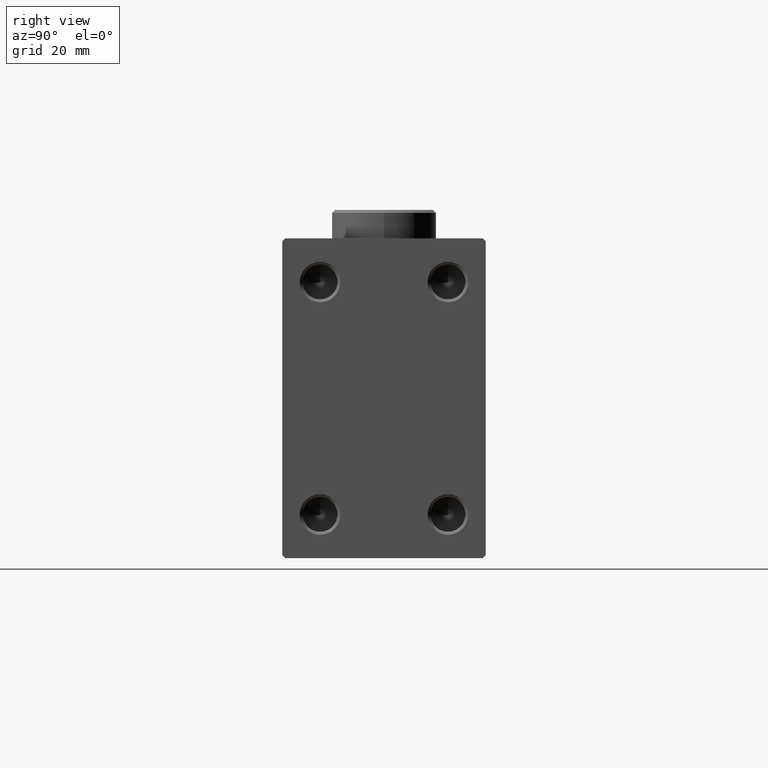
[diagram: clean part render]
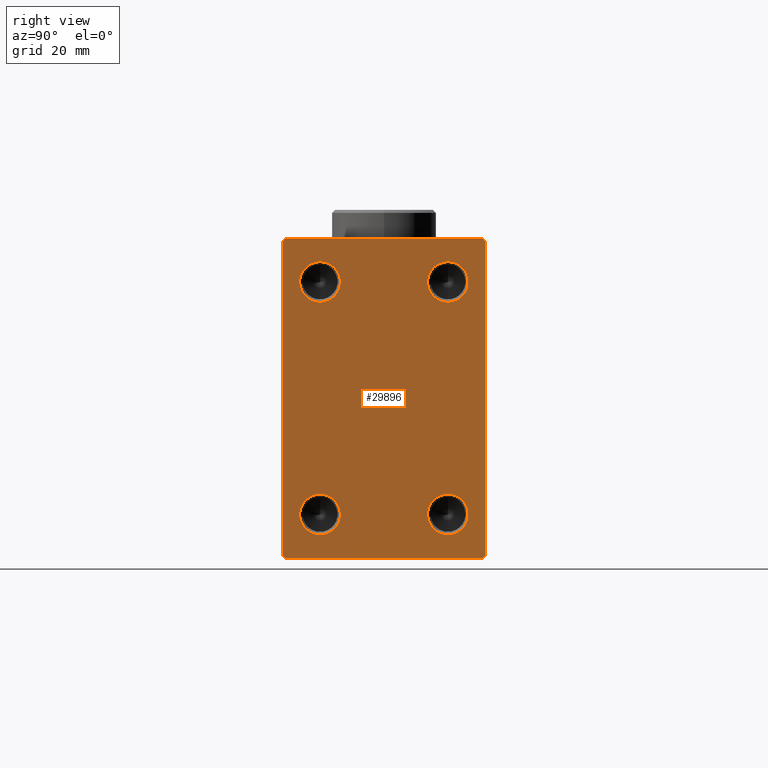
[diagram: same view with one face highlighted and labeled with its STEP entity id]
A machine part, right view. The second image highlights one B-rep face of the part: STEP entity #29896.
In plain terms, the highlighted planar face has unit normal (1, 0, 0).
Its self-contained STEP definition (entity closure, byte-faithful):
#2301 = LINE ( 'NONE', #17032, #26851 ) ;
#2559 = CARTESIAN_POINT ( 'NONE',  ( 96.00000000000000000, 17.50000000000000000, 27.00000000000001066 ) ) ;
#2663 = CARTESIAN_POINT ( 'NONE',  ( 96.00000000000000000, -11.00000000000000533, -20.00000000000000000 ) ) ;
#2890 = CARTESIAN_POINT ( 'NONE',  ( 96.00000000000000000, 11.00000000000000178, 16.50000000000001421 ) ) ;
#2904 = CARTESIAN_POINT ( 'NONE',  ( 96.00000000000000000, -11.00000000000000533, 23.50000000000000000 ) ) ;
#2905 = CARTESIAN_POINT ( 'NONE',  ( 96.00000000000000000, 0.000000000000000000, 0.000000000000000000 ) ) ;
#2946 = CARTESIAN_POINT ( 'NONE',  ( 96.00000000000000000, 11.00000000000000178, -23.49999999999999289 ) ) ;
#3115 = AXIS2_PLACEMENT_3D ( 'NONE', #22034, #44109, #19023 ) ;
#3133 = FACE_OUTER_BOUND ( 'NONE', #30936, .T. ) ;
#3319 = DIRECTION ( 'NONE',  ( 0.000000000000000000, 0.000000000000000000, -1.000000000000000000 ) ) ;
#3868 = CARTESIAN_POINT ( 'NONE',  ( 96.00000000000000000, -17.00000000000000711, -27.50000000000000711 ) ) ;
#3911 = ORIENTED_EDGE ( 'NONE', *, *, #40243, .F. ) ;
#4001 = EDGE_CURVE ( 'NONE', #26411, #32116, #37673, .T. ) ;
#4036 = AXIS2_PLACEMENT_3D ( 'NONE', #11429, #22036, #36056 ) ;
#6059 = CARTESIAN_POINT ( 'NONE',  ( 96.00000000000000000, 16.99999999999997868, -27.50000000000001066 ) ) ;
#6165 = ORIENTED_EDGE ( 'NONE', *, *, #6898, .T. ) ;
#6649 = DIRECTION ( 'NONE',  ( 0.000000000000000000, 1.000000000000000000, -9.912705577010325549E-17 ) ) ;
#6655 = DIRECTION ( 'NONE',  ( -0.000000000000000000, -0.7071067811865500152, 0.7071067811865451302 ) ) ;
#6898 = EDGE_CURVE ( 'NONE', #39638, #31574, #13319, .T. ) ;
#8013 = AXIS2_PLACEMENT_3D ( 'NONE', #2663, #27764, #44794 ) ;
#8434 = VERTEX_POINT ( 'NONE', #24099 ) ;
#8831 = EDGE_CURVE ( 'NONE', #36278, #36574, #29937, .T. ) ;
#9263 = ORIENTED_EDGE ( 'NONE', *, *, #17759, .F. ) ;
#9439 = DIRECTION ( 'NONE',  ( 0.000000000000000000, -1.261617073437677752E-16, 1.000000000000000000 ) ) ;
#9797 = FACE_BOUND ( 'NONE', #17422, .T. ) ;
#9871 = CARTESIAN_POINT ( 'NONE',  ( 96.00000000000000000, 22.24999999999994316, 22.25000000000009592 ) ) ;
#9989 = VERTEX_POINT ( 'NONE', #42189 ) ;
#10179 = EDGE_CURVE ( 'NONE', #31574, #33189, #44452, .T. ) ;
#10218 = EDGE_CURVE ( 'NONE', #33189, #29326, #23281, .T. ) ;
#10745 = EDGE_CURVE ( 'NONE', #16069, #13189, #37855, .T. ) ;
#10952 = CARTESIAN_POINT ( 'NONE',  ( 96.00000000000000000, 11.00000000000000178, -20.00000000000000000 ) ) ;
#11219 = LINE ( 'NONE', #17921, #13336 ) ;
#11429 = CARTESIAN_POINT ( 'NONE',  ( 96.00000000000000000, 11.00000000000000178, 20.00000000000000711 ) ) ;
#11767 = EDGE_CURVE ( 'NONE', #21482, #44106, #34974, .T. ) ;
#13127 = EDGE_LOOP ( 'NONE', ( #3911, #33730 ) ) ;
#13189 = VERTEX_POINT ( 'NONE', #37173 ) ;
#13319 = LINE ( 'NONE', #34512, #24521 ) ;
#13322 = DIRECTION ( 'NONE',  ( 0.000000000000000000, -1.000000000000000000, -1.982541115402065356E-16 ) ) ;
#13336 = VECTOR ( 'NONE', #35190, 1000.000000000000114 ) ;
#13475 = CARTESIAN_POINT ( 'NONE',  ( 96.00000000000000000, 11.00000000000000178, -20.00000000000000000 ) ) ;
#15082 = CARTESIAN_POINT ( 'NONE',  ( 96.00000000000000000, -17.49999999999999645, 27.49999999999998579 ) ) ;
#15677 = CARTESIAN_POINT ( 'NONE',  ( 96.00000000000000000, 17.50000000000000711, -27.50000000000001066 ) ) ;
#15697 = CARTESIAN_POINT ( 'NONE',  ( 96.00000000000000000, -11.00000000000000533, -20.00000000000000000 ) ) ;
#16069 = VERTEX_POINT ( 'NONE', #2890 ) ;
#16439 = DIRECTION ( 'NONE',  ( 0.000000000000000000, 0.000000000000000000, -1.000000000000000000 ) ) ;
#16497 = EDGE_LOOP ( 'NONE', ( #43987, #9263 ) ) ;
#16623 = CARTESIAN_POINT ( 'NONE',  ( 96.00000000000000000, 17.00000000000001421, 27.49999999999999289 ) ) ;
#16801 = DIRECTION ( 'NONE',  ( -0.000000000000000000, 0.7071067811865378028, -0.7071067811865573427 ) ) ;
#17032 = CARTESIAN_POINT ( 'NONE',  ( 96.00000000000000000, -22.25000000000024514, -22.24999999999963052 ) ) ;
#17178 = DIRECTION ( 'NONE',  ( 0.000000000000000000, 0.000000000000000000, -1.000000000000000000 ) ) ;
#17422 = EDGE_LOOP ( 'NONE', ( #43151, #38966 ) ) ;
#17689 = ORIENTED_EDGE ( 'NONE', *, *, #29663, .T. ) ;
#17759 = EDGE_CURVE ( 'NONE', #32116, #26411, #30800, .T. ) ;
#17921 = CARTESIAN_POINT ( 'NONE',  ( 96.00000000000000000, -22.24999999999998224, 22.24999999999998224 ) ) ;
#18408 = EDGE_CURVE ( 'NONE', #9989, #26617, #19799, .T. ) ;
#18537 = LINE ( 'NONE', #15082, #29685 ) ;
#19023 = DIRECTION ( 'NONE',  ( 0.000000000000000000, 0.000000000000000000, -1.000000000000000000 ) ) ;
#19307 = ORIENTED_EDGE ( 'NONE', *, *, #18408, .F. ) ;
#19502 = CARTESIAN_POINT ( 'NONE',  ( 96.00000000000000000, -11.00000000000000533, 16.50000000000001421 ) ) ;
#19799 = CIRCLE ( 'NONE', #37401, 3.499999999999989342 ) ;
#20061 = CARTESIAN_POINT ( 'NONE',  ( 96.00000000000000000, -11.00000000000000533, 20.00000000000000711 ) ) ;
#20136 = CARTESIAN_POINT ( 'NONE',  ( 96.00000000000000000, -11.00000000000000533, -16.50000000000000711 ) ) ;
#20952 = CIRCLE ( 'NONE', #34145, 3.499999999999989342 ) ;
#21294 = CIRCLE ( 'NONE', #8013, 3.499999999999989342 ) ;
#21482 = VERTEX_POINT ( 'NONE', #22086 ) ;
#21700 = VECTOR ( 'NONE', #33406, 1000.000000000000114 ) ;
#22034 = CARTESIAN_POINT ( 'NONE',  ( 96.00000000000000000, -11.00000000000000533, 20.00000000000000711 ) ) ;
#22036 = DIRECTION ( 'NONE',  ( 1.000000000000000000, -0.000000000000000000, -0.000000000000000000 ) ) ;
#22086 = CARTESIAN_POINT ( 'NONE',  ( 96.00000000000000000, 11.00000000000000178, -16.50000000000000711 ) ) ;
#22233 = DIRECTION ( 'NONE',  ( 1.000000000000000000, -0.000000000000000000, -0.000000000000000000 ) ) ;
#22619 = DIRECTION ( 'NONE',  ( 0.000000000000000000, 0.000000000000000000, -1.000000000000000000 ) ) ;
#22812 = EDGE_CURVE ( 'NONE', #26617, #9989, #21294, .T. ) ;
#23191 = ORIENTED_EDGE ( 'NONE', *, *, #34932, .T. ) ;
#23281 = LINE ( 'NONE', #15677, #37119 ) ;
#23408 = FACE_BOUND ( 'NONE', #16497, .T. ) ;
#23590 = CARTESIAN_POINT ( 'NONE',  ( 96.00000000000000000, 11.00000000000000178, 20.00000000000000711 ) ) ;
#23643 = ORIENTED_EDGE ( 'NONE', *, *, #8831, .T. ) ;
#23740 = EDGE_CURVE ( 'NONE', #29326, #36278, #38653, .T. ) ;
#24099 = CARTESIAN_POINT ( 'NONE',  ( 96.00000000000000000, -17.49999999999999645, -27.00000000000000711 ) ) ;
#24521 = VECTOR ( 'NONE', #6649, 1000.000000000000000 ) ;
#25277 = ORIENTED_EDGE ( 'NONE', *, *, #23740, .T. ) ;
#25701 = VECTOR ( 'NONE', #6655, 1000.000000000000114 ) ;
#26048 = EDGE_LOOP ( 'NONE', ( #37830, #19307 ) ) ;
#26411 = VERTEX_POINT ( 'NONE', #2904 ) ;
#26617 = VERTEX_POINT ( 'NONE', #20136 ) ;
#26851 = VECTOR ( 'NONE', #16801, 1000.000000000000000 ) ;
#27198 = DIRECTION ( 'NONE',  ( 1.000000000000000000, -0.000000000000000000, -0.000000000000000000 ) ) ;
#27306 = DIRECTION ( 'NONE',  ( 1.000000000000000000, -0.000000000000000000, -0.000000000000000000 ) ) ;
#27313 = FACE_BOUND ( 'NONE', #26048, .T. ) ;
#27542 = DIRECTION ( 'NONE',  ( 0.000000000000000000, 0.000000000000000000, -1.000000000000000000 ) ) ;
#27764 = DIRECTION ( 'NONE',  ( 1.000000000000000000, -0.000000000000000000, -0.000000000000000000 ) ) ;
#29326 = VERTEX_POINT ( 'NONE', #2559 ) ;
#29663 = EDGE_CURVE ( 'NONE', #36574, #32769, #11219, .T. ) ;
#29685 = VECTOR ( 'NONE', #16439, 1000.000000000000000 ) ;
#29739 = CARTESIAN_POINT ( 'NONE',  ( 96.00000000000000000, 22.24999999999999289, -22.24999999999999289 ) ) ;
#29896 = ADVANCED_FACE ( 'NONE', ( #37898, #23408, #27313, #9797, #3133 ), #34449, .T. ) ;
#29937 = LINE ( 'NONE', #37278, #40769 ) ;
#30471 = CIRCLE ( 'NONE', #36333, 3.499999999999989342 ) ;
#30800 = CIRCLE ( 'NONE', #44774, 3.499999999999989342 ) ;
#30936 = EDGE_LOOP ( 'NONE', ( #23643, #17689, #23191, #36905, #6165, #31846, #31551, #25277 ) ) ;
#30952 = DIRECTION ( 'NONE',  ( 1.000000000000000000, -0.000000000000000000, -0.000000000000000000 ) ) ;
#31551 = ORIENTED_EDGE ( 'NONE', *, *, #10218, .T. ) ;
#31574 = VERTEX_POINT ( 'NONE', #6059 ) ;
#31846 = ORIENTED_EDGE ( 'NONE', *, *, #10179, .T. ) ;
#32116 = VERTEX_POINT ( 'NONE', #19502 ) ;
#32769 = VERTEX_POINT ( 'NONE', #36138 ) ;
#33189 = VERTEX_POINT ( 'NONE', #39091 ) ;
#33406 = DIRECTION ( 'NONE',  ( -0.000000000000000000, 0.7071067811865474617, 0.7071067811865474617 ) ) ;
#33649 = DIRECTION ( 'NONE',  ( 1.000000000000000000, -0.000000000000000000, -0.000000000000000000 ) ) ;
#33730 = ORIENTED_EDGE ( 'NONE', *, *, #10745, .F. ) ;
#34145 = AXIS2_PLACEMENT_3D ( 'NONE', #10952, #22233, #36261 ) ;
#34449 = PLANE ( 'NONE',  #41311 ) ;
#34512 = CARTESIAN_POINT ( 'NONE',  ( 96.00000000000000000, -17.49999999999999645, -27.50000000000000711 ) ) ;
#34932 = EDGE_CURVE ( 'NONE', #32769, #8434, #18537, .T. ) ;
#34974 = CIRCLE ( 'NONE', #39354, 3.499999999999989342 ) ;
#35190 = DIRECTION ( 'NONE',  ( 0.000000000000000000, -0.7071067811865474617, -0.7071067811865474617 ) ) ;
#36056 = DIRECTION ( 'NONE',  ( 0.000000000000000000, 0.000000000000000000, -1.000000000000000000 ) ) ;
#36138 = CARTESIAN_POINT ( 'NONE',  ( 96.00000000000000000, -17.49999999999999645, 26.99999999999997158 ) ) ;
#36261 = DIRECTION ( 'NONE',  ( 0.000000000000000000, 0.000000000000000000, -1.000000000000000000 ) ) ;
#36278 = VERTEX_POINT ( 'NONE', #16623 ) ;
#36333 = AXIS2_PLACEMENT_3D ( 'NONE', #23590, #30952, #3319 ) ;
#36574 = VERTEX_POINT ( 'NONE', #38621 ) ;
#36905 = ORIENTED_EDGE ( 'NONE', *, *, #42250, .T. ) ;
#37119 = VECTOR ( 'NONE', #9439, 1000.000000000000000 ) ;
#37173 = CARTESIAN_POINT ( 'NONE',  ( 96.00000000000000000, 11.00000000000000178, 23.50000000000000000 ) ) ;
#37278 = CARTESIAN_POINT ( 'NONE',  ( 96.00000000000000000, 17.50000000000000000, 27.49999999999999289 ) ) ;
#37401 = AXIS2_PLACEMENT_3D ( 'NONE', #15697, #33649, #22619 ) ;
#37543 = DIRECTION ( 'NONE',  ( 0.000000000000000000, 0.000000000000000000, -1.000000000000000000 ) ) ;
#37673 = CIRCLE ( 'NONE', #3115, 3.499999999999989342 ) ;
#37830 = ORIENTED_EDGE ( 'NONE', *, *, #22812, .F. ) ;
#37855 = CIRCLE ( 'NONE', #4036, 3.499999999999989342 ) ;
#37898 = FACE_BOUND ( 'NONE', #13127, .T. ) ;
#38621 = CARTESIAN_POINT ( 'NONE',  ( 96.00000000000000000, -16.99999999999997868, 27.49999999999998579 ) ) ;
#38653 = LINE ( 'NONE', #9871, #25701 ) ;
#38966 = ORIENTED_EDGE ( 'NONE', *, *, #40888, .F. ) ;
#39091 = CARTESIAN_POINT ( 'NONE',  ( 96.00000000000000000, 17.50000000000000711, -26.99999999999998224 ) ) ;
#39354 = AXIS2_PLACEMENT_3D ( 'NONE', #13475, #27306, #27542 ) ;
#39638 = VERTEX_POINT ( 'NONE', #3868 ) ;
#40243 = EDGE_CURVE ( 'NONE', #13189, #16069, #30471, .T. ) ;
#40769 = VECTOR ( 'NONE', #13322, 1000.000000000000000 ) ;
#40888 = EDGE_CURVE ( 'NONE', #44106, #21482, #20952, .T. ) ;
#41311 = AXIS2_PLACEMENT_3D ( 'NONE', #2905, #45037, #17178 ) ;
#42189 = CARTESIAN_POINT ( 'NONE',  ( 96.00000000000000000, -11.00000000000000533, -23.49999999999999289 ) ) ;
#42250 = EDGE_CURVE ( 'NONE', #8434, #39638, #2301, .T. ) ;
#43151 = ORIENTED_EDGE ( 'NONE', *, *, #11767, .F. ) ;
#43987 = ORIENTED_EDGE ( 'NONE', *, *, #4001, .F. ) ;
#44106 = VERTEX_POINT ( 'NONE', #2946 ) ;
#44109 = DIRECTION ( 'NONE',  ( 1.000000000000000000, -0.000000000000000000, -0.000000000000000000 ) ) ;
#44452 = LINE ( 'NONE', #29739, #21700 ) ;
#44774 = AXIS2_PLACEMENT_3D ( 'NONE', #20061, #27198, #37543 ) ;
#44794 = DIRECTION ( 'NONE',  ( 0.000000000000000000, 0.000000000000000000, -1.000000000000000000 ) ) ;
#45037 = DIRECTION ( 'NONE',  ( 1.000000000000000000, 0.000000000000000000, 0.000000000000000000 ) ) ;